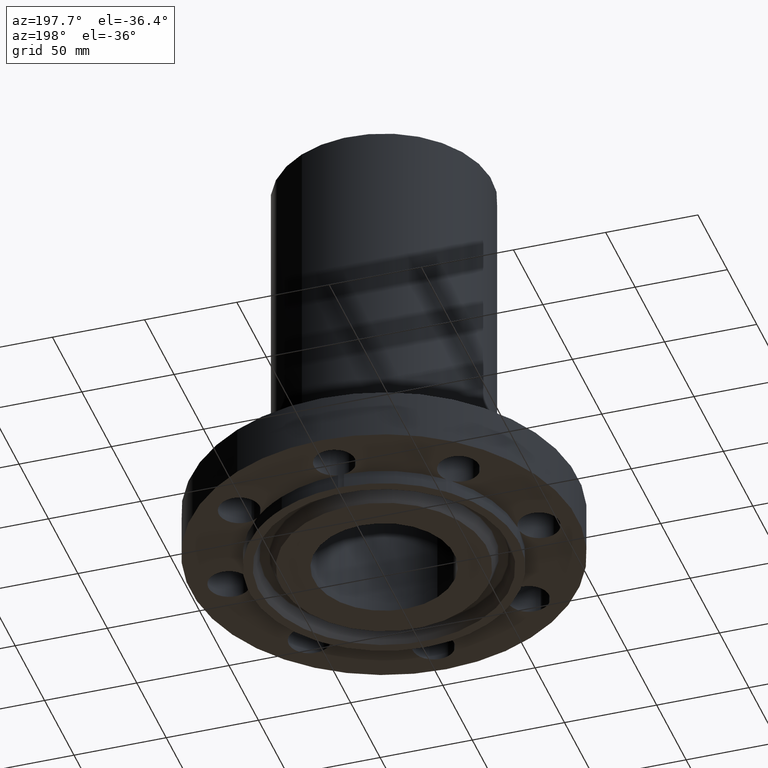
[diagram: clean part render]
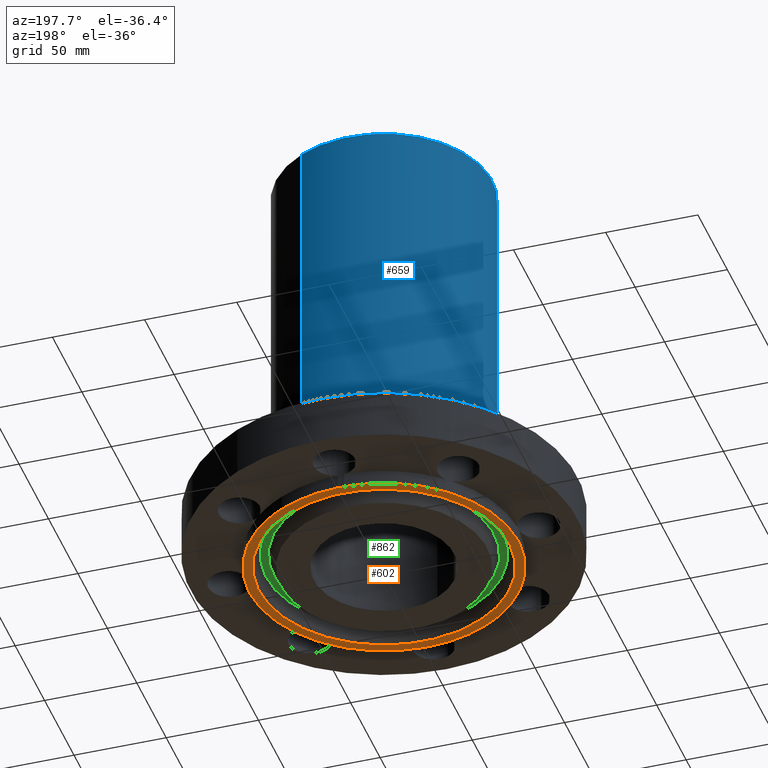
[diagram: same view with three faces highlighted in distinct colors, each labeled with its STEP entity id]
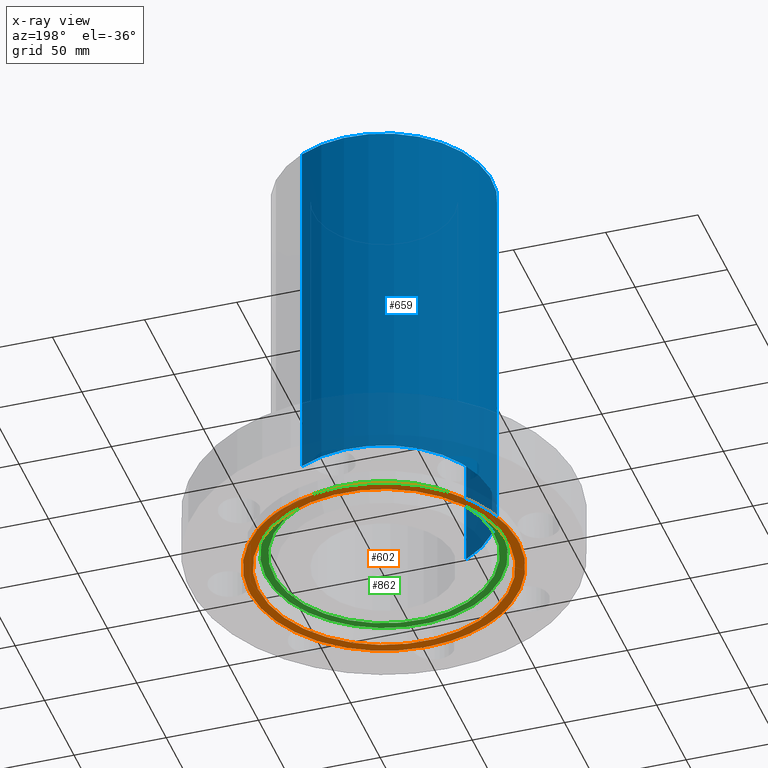
[diagram: x-ray of the same camera — body ghosted, the three highlighted faces saturated]
A machine part, auxiliary view with three faces highlighted in distinct colors.
The next image is the same camera in x-ray (body ghosted, the three faces saturated) — at least one of them is partly hidden behind the body in this view.
Their STEP definitions:

[orange] entity #602 — the highlighted planar face has unit normal (0, 0, -1).
#378=AXIS2_PLACEMENT_3D('Circle Axis2P3D',#376,#377,$) ;
#445=AXIS2_PLACEMENT_3D('Plane Axis2P3D',#442,#443,#444) ;
#449=AXIS2_PLACEMENT_3D('Circle Axis2P3D',#447,#448,$) ;
#458=AXIS2_PLACEMENT_3D('Circle Axis2P3D',#456,#457,$) ;
#465=AXIS2_PLACEMENT_3D('Circle Axis2P3D',#463,#464,$) ;
#472=AXIS2_PLACEMENT_3D('Circle Axis2P3D',#470,#471,$) ;
#479=AXIS2_PLACEMENT_3D('Circle Axis2P3D',#477,#478,$) ;
#486=AXIS2_PLACEMENT_3D('Circle Axis2P3D',#484,#485,$) ;
#493=AXIS2_PLACEMENT_3D('Circle Axis2P3D',#491,#492,$) ;
#500=AXIS2_PLACEMENT_3D('Circle Axis2P3D',#498,#499,$) ;
#507=AXIS2_PLACEMENT_3D('Circle Axis2P3D',#505,#506,$) ;
#514=AXIS2_PLACEMENT_3D('Circle Axis2P3D',#512,#513,$) ;
#521=AXIS2_PLACEMENT_3D('Circle Axis2P3D',#519,#520,$) ;
#528=AXIS2_PLACEMENT_3D('Circle Axis2P3D',#526,#527,$) ;
#535=AXIS2_PLACEMENT_3D('Circle Axis2P3D',#533,#534,$) ;
#542=AXIS2_PLACEMENT_3D('Circle Axis2P3D',#540,#541,$) ;
#549=AXIS2_PLACEMENT_3D('Circle Axis2P3D',#547,#548,$) ;
#554=AXIS2_PLACEMENT_3D('Circle Axis2P3D',#552,#553,$) ;
#561=AXIS2_PLACEMENT_3D('Circle Axis2P3D',#559,#560,$) ;
#586=AXIS2_PLACEMENT_3D('Circle Axis2P3D',#584,#585,$) ;
#595=AXIS2_PLACEMENT_3D('Circle Axis2P3D',#593,#594,$) ;
#373=CARTESIAN_POINT('Vertex',(2.87433912388,-0.0616409036851,-0.313000000001)) ;
#376=CARTESIAN_POINT('Axis2P3D Location',(3.31000000001,0.,-0.313000000001)) ;
#380=CARTESIAN_POINT('Vertex',(2.87433912388,0.0616409036851,-0.313000000001)) ;
#442=CARTESIAN_POINT('Axis2P3D Location',(0.,1.50000000001,-0.313000000001)) ;
#447=CARTESIAN_POINT('Axis2P3D Location',(0.,0.,-0.313000000001)) ;
#451=CARTESIAN_POINT('Vertex',(1.98887798493,-2.07605138692,-0.313000000001)) ;
#453=CARTESIAN_POINT('Vertex',(0.0616409036851,-2.87433912388,-0.313000000001)) ;
#456=CARTESIAN_POINT('Axis2P3D Location',(-3.1470888887E-016,-3.31000000001,-0.313000000001)) ;
#460=CARTESIAN_POINT('Vertex',(-0.0616409036851,-2.87433912388,-0.313000000001)) ;
#463=CARTESIAN_POINT('Axis2P3D Location',(0.,0.,-0.313000000001)) ;
#467=CARTESIAN_POINT('Vertex',(-1.37834842349,-2.52304986544,-0.313000000001)) ;
#470=CARTESIAN_POINT('Axis2P3D Location',(0.,0.,-0.313000000001)) ;
#474=CARTESIAN_POINT('Vertex',(-1.98887798493,-2.07605138692,-0.313000000001)) ;
#477=CARTESIAN_POINT('Axis2P3D Location',(-2.34052344574,-2.34052344574,-0.313000000001)) ;
#481=CARTESIAN_POINT('Vertex',(-2.07605138692,-1.98887798493,-0.313000000001)) ;
#484=CARTESIAN_POINT('Axis2P3D Location',(0.,0.,-0.313000000001)) ;
#488=CARTESIAN_POINT('Vertex',(-2.87433912388,-0.0616409036851,-0.313000000001)) ;
#491=CARTESIAN_POINT('Axis2P3D Location',(-3.31000000001,-2.79741234551E-016,-0.313000000001)) ;
#495=CARTESIAN_POINT('Vertex',(-2.87433912388,0.0616409036851,-0.313000000001)) ;
#498=CARTESIAN_POINT('Axis2P3D Location',(0.,0.,-0.313000000001)) ;
#502=CARTESIAN_POINT('Vertex',(-2.07605138692,1.98887798493,-0.313000000001)) ;
#505=CARTESIAN_POINT('Axis2P3D Location',(-2.34052344574,2.34052344574,-0.313000000001)) ;
#509=CARTESIAN_POINT('Vertex',(-1.98887798493,2.07605138692,-0.313000000001)) ;
#512=CARTESIAN_POINT('Axis2P3D Location',(0.,0.,-0.313000000001)) ;
#516=CARTESIAN_POINT('Vertex',(-0.0616409036851,2.87433912388,-0.313000000001)) ;
#519=CARTESIAN_POINT('Axis2P3D Location',(-6.469016049E-016,3.31000000001,-0.313000000001)) ;
#523=CARTESIAN_POINT('Vertex',(0.0616409036851,2.87433912388,-0.313000000001)) ;
#526=CARTESIAN_POINT('Axis2P3D Location',(0.,0.,-0.313000000001)) ;
#530=CARTESIAN_POINT('Vertex',(1.37834842349,2.52304986544,-0.313000000001)) ;
#533=CARTESIAN_POINT('Axis2P3D Location',(0.,0.,-0.313000000001)) ;
#537=CARTESIAN_POINT('Vertex',(1.98887798493,2.07605138692,-0.313000000001)) ;
#540=CARTESIAN_POINT('Axis2P3D Location',(2.34052344574,2.34052344574,-0.313000000001)) ;
#544=CARTESIAN_POINT('Vertex',(2.07605138692,1.98887798493,-0.313000000001)) ;
#547=CARTESIAN_POINT('Axis2P3D Location',(0.,0.,-0.313000000001)) ;
#552=CARTESIAN_POINT('Axis2P3D Location',(0.,0.,-0.313000000001)) ;
#556=CARTESIAN_POINT('Vertex',(2.07605138692,-1.98887798493,-0.313000000001)) ;
#559=CARTESIAN_POINT('Axis2P3D Location',(2.34052344574,-2.34052344574,-0.313000000001)) ;
#584=CARTESIAN_POINT('Axis2P3D Location',(0.,0.,-0.313000000001)) ;
#588=CARTESIAN_POINT('Vertex',(1.28102503916,2.34490060538,-0.313000000001)) ;
#590=CARTESIAN_POINT('Vertex',(-1.28102503916,-2.34490060538,-0.313000000001)) ;
#593=CARTESIAN_POINT('Axis2P3D Location',(0.,0.,-0.313000000001)) ;
#377=DIRECTION('Axis2P3D Direction',(0.,-0.,0.0393700787402)) ;
#443=DIRECTION('Axis2P3D Direction',(0.,0.,-0.0393700787402)) ;
#444=DIRECTION('Axis2P3D XDirection',(0.0393700787402,0.,0.)) ;
#448=DIRECTION('Axis2P3D Direction',(0.,0.,-0.0393700787402)) ;
#457=DIRECTION('Axis2P3D Direction',(0.,0.,-0.0393700787402)) ;
#464=DIRECTION('Axis2P3D Direction',(0.,0.,-0.0393700787402)) ;
#471=DIRECTION('Axis2P3D Direction',(0.,0.,-0.0393700787402)) ;
#478=DIRECTION('Axis2P3D Direction',(0.,0.,-0.0393700787402)) ;
#485=DIRECTION('Axis2P3D Direction',(0.,0.,-0.0393700787402)) ;
#492=DIRECTION('Axis2P3D Direction',(0.,0.,-0.0393700787402)) ;
#499=DIRECTION('Axis2P3D Direction',(0.,0.,-0.0393700787402)) ;
#506=DIRECTION('Axis2P3D Direction',(0.,0.,-0.0393700787402)) ;
#513=DIRECTION('Axis2P3D Direction',(0.,0.,-0.0393700787402)) ;
#520=DIRECTION('Axis2P3D Direction',(0.,0.,-0.0393700787402)) ;
#527=DIRECTION('Axis2P3D Direction',(0.,0.,-0.0393700787402)) ;
#534=DIRECTION('Axis2P3D Direction',(0.,0.,-0.0393700787402)) ;
#541=DIRECTION('Axis2P3D Direction',(0.,0.,-0.0393700787402)) ;
#548=DIRECTION('Axis2P3D Direction',(0.,0.,-0.0393700787402)) ;
#553=DIRECTION('Axis2P3D Direction',(0.,0.,-0.0393700787402)) ;
#560=DIRECTION('Axis2P3D Direction',(0.,0.,-0.0393700787402)) ;
#585=DIRECTION('Axis2P3D Direction',(0.,0.,-0.0393700787402)) ;
#594=DIRECTION('Axis2P3D Direction',(0.,0.,-0.0393700787402)) ;
#565=ORIENTED_EDGE('',*,*,#455,.T.) ;
#566=ORIENTED_EDGE('',*,*,#462,.F.) ;
#567=ORIENTED_EDGE('',*,*,#469,.T.) ;
#568=ORIENTED_EDGE('',*,*,#476,.T.) ;
#569=ORIENTED_EDGE('',*,*,#483,.F.) ;
#570=ORIENTED_EDGE('',*,*,#490,.T.) ;
#571=ORIENTED_EDGE('',*,*,#497,.F.) ;
#572=ORIENTED_EDGE('',*,*,#504,.T.) ;
#573=ORIENTED_EDGE('',*,*,#511,.F.) ;
#574=ORIENTED_EDGE('',*,*,#518,.T.) ;
#575=ORIENTED_EDGE('',*,*,#525,.F.) ;
#576=ORIENTED_EDGE('',*,*,#532,.T.) ;
#577=ORIENTED_EDGE('',*,*,#539,.T.) ;
#578=ORIENTED_EDGE('',*,*,#546,.F.) ;
#579=ORIENTED_EDGE('',*,*,#551,.T.) ;
#580=ORIENTED_EDGE('',*,*,#382,.F.) ;
#581=ORIENTED_EDGE('',*,*,#558,.T.) ;
#582=ORIENTED_EDGE('',*,*,#563,.F.) ;
#599=ORIENTED_EDGE('',*,*,#592,.F.) ;
#600=ORIENTED_EDGE('',*,*,#597,.F.) ;
#601=FACE_BOUND('',#598,.T.) ;
#602=ADVANCED_FACE('PartBody',(#583,#601),#446,.T.) ;
#379=CIRCLE('generated circle',#378,0.440000000002) ;
#450=CIRCLE('generated circle',#449,2.87500000001) ;
#459=CIRCLE('generated circle',#458,0.440000000002) ;
#466=CIRCLE('generated circle',#465,2.87500000001) ;
#473=CIRCLE('generated circle',#472,2.87500000001) ;
#480=CIRCLE('generated circle',#479,0.440000000002) ;
#487=CIRCLE('generated circle',#486,2.87500000001) ;
#494=CIRCLE('generated circle',#493,0.440000000002) ;
#501=CIRCLE('generated circle',#500,2.87500000001) ;
#508=CIRCLE('generated circle',#507,0.440000000002) ;
#515=CIRCLE('generated circle',#514,2.87500000001) ;
#522=CIRCLE('generated circle',#521,0.440000000002) ;
#529=CIRCLE('generated circle',#528,2.87500000001) ;
#536=CIRCLE('generated circle',#535,2.87500000001) ;
#543=CIRCLE('generated circle',#542,0.440000000002) ;
#550=CIRCLE('generated circle',#549,2.87500000001) ;
#555=CIRCLE('generated circle',#554,2.87500000001) ;
#562=CIRCLE('generated circle',#561,0.440000000002) ;
#587=CIRCLE('generated circle',#586,2.67200000001) ;
#596=CIRCLE('generated circle',#595,2.67200000001) ;
#382=EDGE_CURVE('',#374,#381,#379,.F.) ;
#455=EDGE_CURVE('',#452,#454,#450,.T.) ;
#462=EDGE_CURVE('',#461,#454,#459,.T.) ;
#469=EDGE_CURVE('',#461,#468,#466,.T.) ;
#476=EDGE_CURVE('',#468,#475,#473,.T.) ;
#483=EDGE_CURVE('',#482,#475,#480,.T.) ;
#490=EDGE_CURVE('',#482,#489,#487,.T.) ;
#497=EDGE_CURVE('',#496,#489,#494,.T.) ;
#504=EDGE_CURVE('',#496,#503,#501,.T.) ;
#511=EDGE_CURVE('',#510,#503,#508,.T.) ;
#518=EDGE_CURVE('',#510,#517,#515,.T.) ;
#525=EDGE_CURVE('',#524,#517,#522,.T.) ;
#532=EDGE_CURVE('',#524,#531,#529,.T.) ;
#539=EDGE_CURVE('',#531,#538,#536,.T.) ;
#546=EDGE_CURVE('',#545,#538,#543,.T.) ;
#551=EDGE_CURVE('',#545,#381,#550,.T.) ;
#558=EDGE_CURVE('',#374,#557,#555,.T.) ;
#563=EDGE_CURVE('',#452,#557,#562,.T.) ;
#592=EDGE_CURVE('',#589,#591,#587,.T.) ;
#597=EDGE_CURVE('',#591,#589,#596,.T.) ;
#564=EDGE_LOOP('',(#565,#566,#567,#568,#569,#570,#571,#572,#573,#574,#575,#576,#577,#578,#579,#580,#581,#582)) ;
#598=EDGE_LOOP('',(#599,#600)) ;
#583=FACE_OUTER_BOUND('',#564,.T.) ;
#446=PLANE('',#445) ;
#374=VERTEX_POINT('',#373) ;
#381=VERTEX_POINT('',#380) ;
#452=VERTEX_POINT('',#451) ;
#454=VERTEX_POINT('',#453) ;
#461=VERTEX_POINT('',#460) ;
#468=VERTEX_POINT('',#467) ;
#475=VERTEX_POINT('',#474) ;
#482=VERTEX_POINT('',#481) ;
#489=VERTEX_POINT('',#488) ;
#496=VERTEX_POINT('',#495) ;
#503=VERTEX_POINT('',#502) ;
#510=VERTEX_POINT('',#509) ;
#517=VERTEX_POINT('',#516) ;
#524=VERTEX_POINT('',#523) ;
#531=VERTEX_POINT('',#530) ;
#538=VERTEX_POINT('',#537) ;
#545=VERTEX_POINT('',#544) ;
#557=VERTEX_POINT('',#556) ;
#589=VERTEX_POINT('',#588) ;
#591=VERTEX_POINT('',#590) ;

[blue] entity #659 — the highlighted cylindrical surface (partial cylindrical patch) has radius 58.674 mm, axis along (0, 0, -1).
#606=AXIS2_PLACEMENT_3D('Cylinder Axis2P3D',#603,#604,#605) ;
#645=AXIS2_PLACEMENT_3D('Circle Axis2P3D',#643,#644,$) ;
#650=AXIS2_PLACEMENT_3D('Circle Axis2P3D',#648,#649,$) ;
#603=CARTESIAN_POINT('Axis2P3D Location',(0.,0.,4.31225000002)) ;
#612=CARTESIAN_POINT('Vertex',(1.10747299418,2.02721571797,1.0575)) ;
#614=CARTESIAN_POINT('Vertex',(-1.10747299418,-2.02721571797,1.0575)) ;
#617=CARTESIAN_POINT('Line Origine',(1.10747299418,2.02721571797,4.99750000002)) ;
#621=CARTESIAN_POINT('Vertex',(1.10747299418,2.02721571797,8.93750000004)) ;
#628=CARTESIAN_POINT('Vertex',(-1.10747299418,-2.02721571797,8.93750000004)) ;
#631=CARTESIAN_POINT('Line Origine',(-1.10747299418,-2.02721571797,4.99750000002)) ;
#643=CARTESIAN_POINT('Axis2P3D Location',(0.,0.,1.0575)) ;
#648=CARTESIAN_POINT('Axis2P3D Location',(0.,0.,8.93750000004)) ;
#604=DIRECTION('Axis2P3D Direction',(0.,0.,-0.0393700787402)) ;
#605=DIRECTION('Axis2P3D XDirection',(-0.0188750212049,-0.0345504945626,0.)) ;
#618=DIRECTION('Vector Direction',(0.,0.,-0.0393700787402)) ;
#632=DIRECTION('Vector Direction',(0.,0.,-0.0393700787402)) ;
#644=DIRECTION('Axis2P3D Direction',(0.,0.,-0.0393700787402)) ;
#649=DIRECTION('Axis2P3D Direction',(0.,0.,-0.0393700787402)) ;
#619=VECTOR('Line Direction',#618,0.0393700787402) ;
#633=VECTOR('Line Direction',#632,0.0393700787402) ;
#654=ORIENTED_EDGE('',*,*,#647,.F.) ;
#655=ORIENTED_EDGE('',*,*,#635,.T.) ;
#656=ORIENTED_EDGE('',*,*,#652,.T.) ;
#657=ORIENTED_EDGE('',*,*,#623,.F.) ;
#659=ADVANCED_FACE('PartBody',(#658),#607,.T.) ;
#646=CIRCLE('generated circle',#645,2.31000000001) ;
#651=CIRCLE('generated circle',#650,2.31000000001) ;
#607=CYLINDRICAL_SURFACE('generated cylinder',#606,2.31000000001) ;
#623=EDGE_CURVE('',#613,#622,#620,.F.) ;
#635=EDGE_CURVE('',#615,#629,#634,.F.) ;
#647=EDGE_CURVE('',#615,#613,#646,.T.) ;
#652=EDGE_CURVE('',#629,#622,#651,.T.) ;
#653=EDGE_LOOP('',(#654,#655,#656,#657)) ;
#658=FACE_OUTER_BOUND('',#653,.T.) ;
#620=LINE('Line',#617,#619) ;
#634=LINE('Line',#631,#633) ;
#613=VERTEX_POINT('',#612) ;
#615=VERTEX_POINT('',#614) ;
#622=VERTEX_POINT('',#621) ;
#629=VERTEX_POINT('',#628) ;

[green] entity #862 — the highlighted planar face has unit normal (0, 0, -1).
#78=AXIS2_PLACEMENT_3D('Plane Axis2P3D',#75,#76,#77) ;
#811=AXIS2_PLACEMENT_3D('Circle Axis2P3D',#809,#810,$) ;
#830=AXIS2_PLACEMENT_3D('Circle Axis2P3D',#828,#829,$) ;
#842=AXIS2_PLACEMENT_3D('Circle Axis2P3D',#840,#841,$) ;
#851=AXIS2_PLACEMENT_3D('Circle Axis2P3D',#849,#850,$) ;
#75=CARTESIAN_POINT('Axis2P3D Location',(0.,2.35637906988,0.)) ;
#806=CARTESIAN_POINT('Vertex',(-1.12970830473,-2.06791718093,1.09273919747E-016)) ;
#809=CARTESIAN_POINT('Axis2P3D Location',(0.,0.,1.09273919747E-016)) ;
#813=CARTESIAN_POINT('Vertex',(1.12970830473,2.06791718093,1.09273919747E-016)) ;
#828=CARTESIAN_POINT('Axis2P3D Location',(0.,0.,1.09273919747E-016)) ;
#840=CARTESIAN_POINT('Axis2P3D Location',(0.,0.,0.)) ;
#844=CARTESIAN_POINT('Vertex',(-1.20749119597,-2.2102978083,1.74838271595E-017)) ;
#846=CARTESIAN_POINT('Vertex',(1.20749119597,2.2102978083,1.74838271595E-017)) ;
#849=CARTESIAN_POINT('Axis2P3D Location',(0.,0.,0.)) ;
#76=DIRECTION('Axis2P3D Direction',(0.,0.,-0.0393700787402)) ;
#77=DIRECTION('Axis2P3D XDirection',(0.0393700787402,0.,0.)) ;
#810=DIRECTION('Axis2P3D Direction',(0.,0.,-0.0393700787402)) ;
#829=DIRECTION('Axis2P3D Direction',(0.,0.,-0.0393700787402)) ;
#841=DIRECTION('Axis2P3D Direction',(0.,0.,-0.0393700787402)) ;
#850=DIRECTION('Axis2P3D Direction',(0.,0.,-0.0393700787402)) ;
#855=ORIENTED_EDGE('',*,*,#848,.T.) ;
#856=ORIENTED_EDGE('',*,*,#853,.T.) ;
#859=ORIENTED_EDGE('',*,*,#832,.F.) ;
#860=ORIENTED_EDGE('',*,*,#815,.F.) ;
#861=FACE_BOUND('',#858,.T.) ;
#862=ADVANCED_FACE('PartBody',(#857,#861),#79,.T.) ;
#812=CIRCLE('generated circle',#811,2.35637906988) ;
#831=CIRCLE('generated circle',#830,2.35637906988) ;
#843=CIRCLE('generated circle',#842,2.51862093014) ;
#852=CIRCLE('generated circle',#851,2.51862093014) ;
#815=EDGE_CURVE('',#807,#814,#812,.T.) ;
#832=EDGE_CURVE('',#814,#807,#831,.T.) ;
#848=EDGE_CURVE('',#845,#847,#843,.T.) ;
#853=EDGE_CURVE('',#847,#845,#852,.T.) ;
#854=EDGE_LOOP('',(#855,#856)) ;
#858=EDGE_LOOP('',(#859,#860)) ;
#857=FACE_OUTER_BOUND('',#854,.T.) ;
#79=PLANE('',#78) ;
#807=VERTEX_POINT('',#806) ;
#814=VERTEX_POINT('',#813) ;
#845=VERTEX_POINT('',#844) ;
#847=VERTEX_POINT('',#846) ;